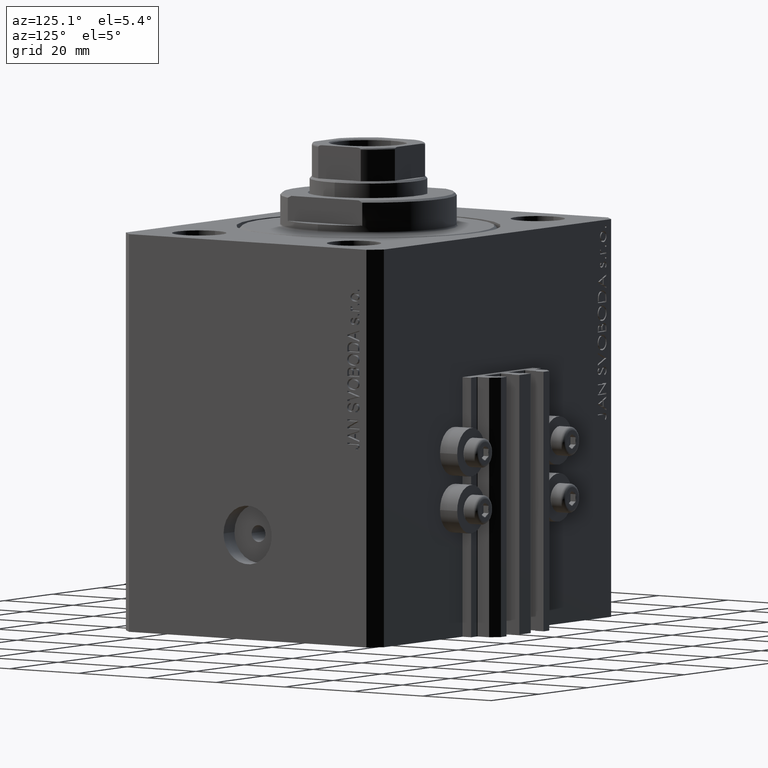
[diagram: clean part render]
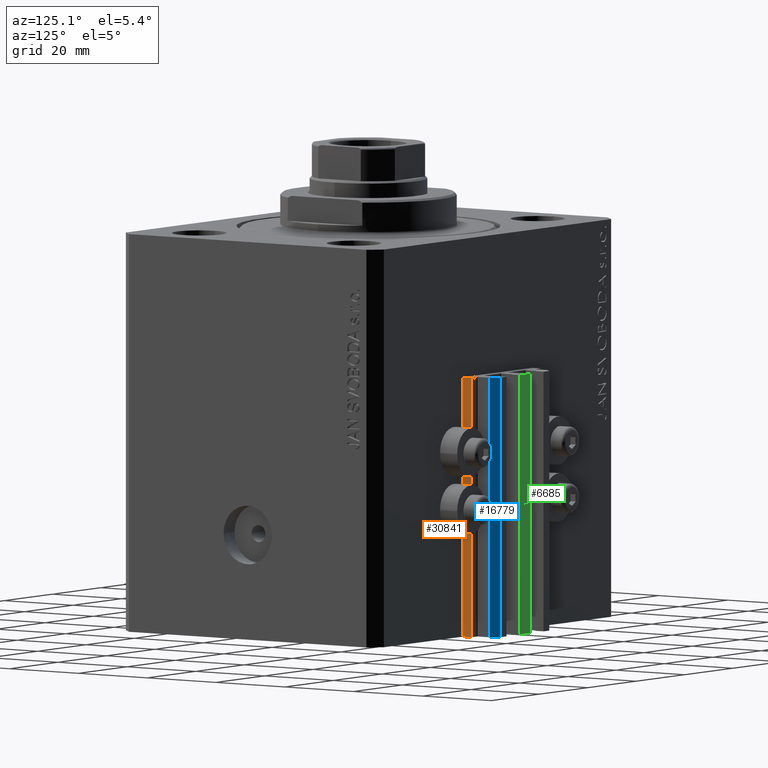
[diagram: same view with three faces highlighted in distinct colors, each labeled with its STEP entity id]
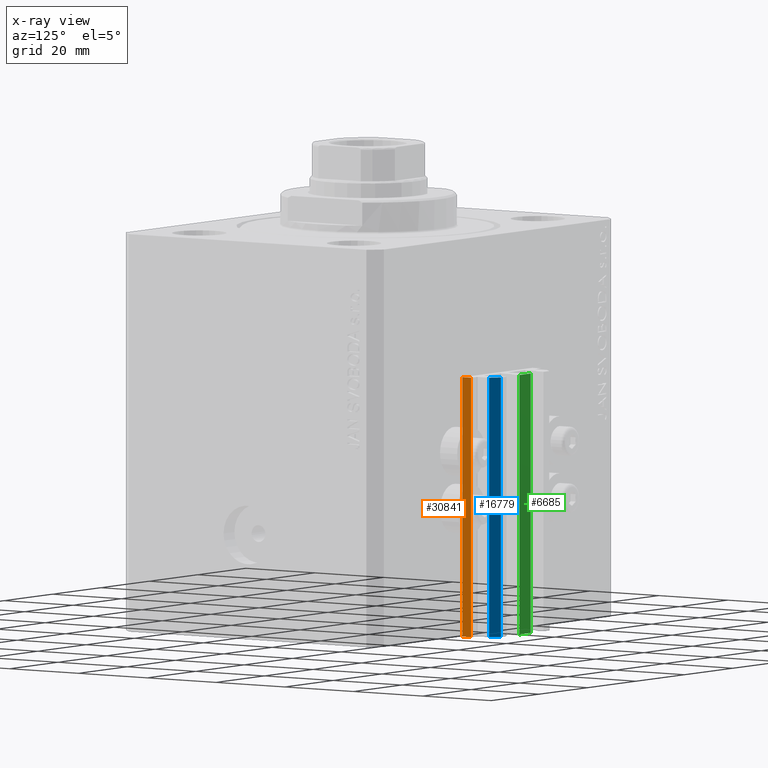
[diagram: x-ray of the same camera — body ghosted, the three highlighted faces saturated]
A machine part, auxiliary view with three faces highlighted in distinct colors.
The next image is the same camera in x-ray (body ghosted, the three faces saturated) — at least one of them is partly hidden behind the body in this view.
Their STEP definitions:

[orange] entity #30841 — the highlighted planar face has unit normal (1, 0, 0).
#393 = VERTEX_POINT ( 'NONE', #10995 ) ;
#1667 = PLANE ( 'NONE',  #35271 ) ;
#2195 = VERTEX_POINT ( 'NONE', #31510 ) ;
#2630 = EDGE_CURVE ( 'NONE', #2195, #10492, #40491, .T. ) ;
#7462 = LINE ( 'NONE', #29495, #40593 ) ;
#7479 = CARTESIAN_POINT ( 'NONE',  ( 14.49999999999999645, 37.50000000000000711, -33.00000000000000000 ) ) ;
#7879 = EDGE_CURVE ( 'NONE', #2195, #393, #7462, .T. ) ;
#8847 = VECTOR ( 'NONE', #46118, 1000.000000000000000 ) ;
#10492 = VERTEX_POINT ( 'NONE', #7479 ) ;
#10995 = CARTESIAN_POINT ( 'NONE',  ( 14.49999999999999645, 40.00000000000002132, -95.00000000000000000 ) ) ;
#11640 = EDGE_LOOP ( 'NONE', ( #27691, #30156, #27555, #39310 ) ) ;
#15188 = CARTESIAN_POINT ( 'NONE',  ( 14.49999999999999645, 37.50000000000000711, -95.00000000000000000 ) ) ;
#16294 = DIRECTION ( 'NONE',  ( 1.000000000000000000, 0.000000000000000000, 0.000000000000000000 ) ) ;
#24583 = CARTESIAN_POINT ( 'NONE',  ( 14.49999999999999645, 40.00000000000002132, -33.00000000000000000 ) ) ;
#25302 = VERTEX_POINT ( 'NONE', #24583 ) ;
#25439 = DIRECTION ( 'NONE',  ( 0.000000000000000000, 1.000000000000000000, 0.000000000000000000 ) ) ;
#26032 = VECTOR ( 'NONE', #43587, 1000.000000000000000 ) ;
#27555 = ORIENTED_EDGE ( 'NONE', *, *, #7879, .T. ) ;
#27691 = ORIENTED_EDGE ( 'NONE', *, *, #45902, .F. ) ;
#29206 = EDGE_CURVE ( 'NONE', #393, #25302, #30127, .T. ) ;
#29495 = CARTESIAN_POINT ( 'NONE',  ( 14.49999999999999645, 37.50000000000000711, -95.00000000000000000 ) ) ;
#29783 = DIRECTION ( 'NONE',  ( 0.000000000000000000, 0.000000000000000000, -1.000000000000000000 ) ) ;
#30127 = LINE ( 'NONE', #44725, #40619 ) ;
#30156 = ORIENTED_EDGE ( 'NONE', *, *, #2630, .F. ) ;
#30841 = ADVANCED_FACE ( 'NONE', ( #37202 ), #1667, .T. ) ;
#31058 = CARTESIAN_POINT ( 'NONE',  ( 14.49999999999999645, 37.50000000000000711, -33.00000000000000000 ) ) ;
#31510 = CARTESIAN_POINT ( 'NONE',  ( 14.49999999999999645, 37.50000000000000711, -95.00000000000000000 ) ) ;
#33523 = CARTESIAN_POINT ( 'NONE',  ( 14.49999999999999645, 37.50000000000000711, -95.00000000000000000 ) ) ;
#35271 = AXIS2_PLACEMENT_3D ( 'NONE', #15188, #16294, #29783 ) ;
#37202 = FACE_OUTER_BOUND ( 'NONE', #11640, .T. ) ;
#37542 = DIRECTION ( 'NONE',  ( 0.000000000000000000, 0.000000000000000000, 1.000000000000000000 ) ) ;
#39310 = ORIENTED_EDGE ( 'NONE', *, *, #29206, .T. ) ;
#40491 = LINE ( 'NONE', #33523, #26032 ) ;
#40593 = VECTOR ( 'NONE', #25439, 1000.000000000000000 ) ;
#40619 = VECTOR ( 'NONE', #37542, 1000.000000000000000 ) ;
#42298 = LINE ( 'NONE', #31058, #8847 ) ;
#43587 = DIRECTION ( 'NONE',  ( 0.000000000000000000, 0.000000000000000000, 1.000000000000000000 ) ) ;
#44725 = CARTESIAN_POINT ( 'NONE',  ( 14.49999999999999645, 40.00000000000002132, -95.00000000000000000 ) ) ;
#45902 = EDGE_CURVE ( 'NONE', #10492, #25302, #42298, .T. ) ;
#46118 = DIRECTION ( 'NONE',  ( 0.000000000000000000, 1.000000000000000000, 0.000000000000000000 ) ) ;

[blue] entity #16779 — the highlighted planar face has unit normal (0.7071, 0.7071, 0).
#2687 = VERTEX_POINT ( 'NONE', #16273 ) ;
#3585 = PLANE ( 'NONE',  #18684 ) ;
#9104 = EDGE_LOOP ( 'NONE', ( #40064, #46188, #37468, #19495 ) ) ;
#10907 = LINE ( 'NONE', #25056, #26911 ) ;
#11188 = EDGE_CURVE ( 'NONE', #20168, #2687, #10907, .T. ) ;
#11199 = DIRECTION ( 'NONE',  ( -0.7071067811865474617, 0.7071067811865474617, 0.000000000000000000 ) ) ;
#11298 = CARTESIAN_POINT ( 'NONE',  ( 12.00000000000000000, 43.50000000000002132, -33.00000000000000000 ) ) ;
#11700 = CARTESIAN_POINT ( 'NONE',  ( 9.999999999999998224, 45.50000000000002842, -33.00000000000000000 ) ) ;
#13187 = LINE ( 'NONE', #27804, #17172 ) ;
#16273 = CARTESIAN_POINT ( 'NONE',  ( 12.00000000000000000, 43.50000000000002132, -33.00000000000000000 ) ) ;
#16779 = ADVANCED_FACE ( 'NONE', ( #23320 ), #3585, .T. ) ;
#17010 = VERTEX_POINT ( 'NONE', #20318 ) ;
#17172 = VECTOR ( 'NONE', #11199, 1000.000000000000114 ) ;
#18684 = AXIS2_PLACEMENT_3D ( 'NONE', #21568, #36391, #24917 ) ;
#19495 = ORIENTED_EDGE ( 'NONE', *, *, #25212, .T. ) ;
#19935 = VECTOR ( 'NONE', #38004, 1000.000000000000000 ) ;
#20168 = VERTEX_POINT ( 'NONE', #38480 ) ;
#20318 = CARTESIAN_POINT ( 'NONE',  ( 9.999999999999998224, 45.50000000000002842, -95.00000000000000000 ) ) ;
#21568 = CARTESIAN_POINT ( 'NONE',  ( 12.00000000000000000, 43.50000000000002132, -95.00000000000000000 ) ) ;
#21625 = EDGE_CURVE ( 'NONE', #2687, #34714, #45027, .T. ) ;
#22944 = CARTESIAN_POINT ( 'NONE',  ( 9.999999999999998224, 45.50000000000002842, -95.00000000000000000 ) ) ;
#23320 = FACE_OUTER_BOUND ( 'NONE', #9104, .T. ) ;
#24917 = DIRECTION ( 'NONE',  ( -0.7071067811865474617, 0.7071067811865474617, 0.000000000000000000 ) ) ;
#25056 = CARTESIAN_POINT ( 'NONE',  ( 12.00000000000000000, 43.50000000000002132, -95.00000000000000000 ) ) ;
#25212 = EDGE_CURVE ( 'NONE', #17010, #34714, #26998, .T. ) ;
#25917 = DIRECTION ( 'NONE',  ( -0.7071067811865474617, 0.7071067811865474617, 0.000000000000000000 ) ) ;
#26911 = VECTOR ( 'NONE', #39654, 1000.000000000000000 ) ;
#26998 = LINE ( 'NONE', #22944, #19935 ) ;
#27804 = CARTESIAN_POINT ( 'NONE',  ( 12.00000000000000000, 43.50000000000002132, -95.00000000000000000 ) ) ;
#32665 = VECTOR ( 'NONE', #25917, 1000.000000000000114 ) ;
#34714 = VERTEX_POINT ( 'NONE', #11700 ) ;
#36391 = DIRECTION ( 'NONE',  ( 0.7071067811865475727, 0.7071067811865475727, -0.000000000000000000 ) ) ;
#37468 = ORIENTED_EDGE ( 'NONE', *, *, #38910, .T. ) ;
#38004 = DIRECTION ( 'NONE',  ( 0.000000000000000000, 0.000000000000000000, 1.000000000000000000 ) ) ;
#38480 = CARTESIAN_POINT ( 'NONE',  ( 12.00000000000000000, 43.50000000000002132, -95.00000000000000000 ) ) ;
#38910 = EDGE_CURVE ( 'NONE', #20168, #17010, #13187, .T. ) ;
#39654 = DIRECTION ( 'NONE',  ( 0.000000000000000000, 0.000000000000000000, 1.000000000000000000 ) ) ;
#40064 = ORIENTED_EDGE ( 'NONE', *, *, #21625, .F. ) ;
#45027 = LINE ( 'NONE', #11298, #32665 ) ;
#46188 = ORIENTED_EDGE ( 'NONE', *, *, #11188, .F. ) ;

[green] entity #6685 — the highlighted planar face has unit normal (0, -1, 0).
#4723 = DIRECTION ( 'NONE',  ( 0.000000000000000000, 0.000000000000000000, 1.000000000000000000 ) ) ;
#5003 = VECTOR ( 'NONE', #4723, 1000.000000000000000 ) ;
#5178 = DIRECTION ( 'NONE',  ( 0.000000000000000000, -1.000000000000000000, 0.000000000000000000 ) ) ;
#6685 = ADVANCED_FACE ( 'NONE', ( #34866 ), #34393, .F. ) ;
#8187 = VERTEX_POINT ( 'NONE', #11459 ) ;
#8879 = DIRECTION ( 'NONE',  ( 0.000000000000000000, 0.000000000000000000, 1.000000000000000000 ) ) ;
#11459 = CARTESIAN_POINT ( 'NONE',  ( -2.350000000000003642, 45.50000000000000711, -95.00000000000000000 ) ) ;
#11476 = CARTESIAN_POINT ( 'NONE',  ( -2.350000000000003642, 45.50000000000000711, -95.00000000000000000 ) ) ;
#11684 = CARTESIAN_POINT ( 'NONE',  ( -2.350000000000003642, 45.50000000000000711, -95.00000000000000000 ) ) ;
#12625 = ORIENTED_EDGE ( 'NONE', *, *, #45738, .T. ) ;
#14284 = EDGE_CURVE ( 'NONE', #8187, #23640, #39999, .T. ) ;
#15865 = CARTESIAN_POINT ( 'NONE',  ( 2.349999999999999645, 45.50000000000000711, -33.00000000000000000 ) ) ;
#18034 = ORIENTED_EDGE ( 'NONE', *, *, #45060, .T. ) ;
#20023 = ORIENTED_EDGE ( 'NONE', *, *, #35441, .F. ) ;
#20766 = AXIS2_PLACEMENT_3D ( 'NONE', #41831, #5178, #34170 ) ;
#22476 = CARTESIAN_POINT ( 'NONE',  ( -2.350000000000003642, 45.50000000000000711, -33.00000000000000000 ) ) ;
#22614 = VECTOR ( 'NONE', #37061, 1000.000000000000000 ) ;
#23640 = VERTEX_POINT ( 'NONE', #37504 ) ;
#26526 = LINE ( 'NONE', #22476, #22614 ) ;
#27546 = CARTESIAN_POINT ( 'NONE',  ( 2.349999999999999645, 45.50000000000000711, -95.00000000000000000 ) ) ;
#28038 = EDGE_LOOP ( 'NONE', ( #18034, #20023, #34476, #12625 ) ) ;
#31137 = LINE ( 'NONE', #27546, #32366 ) ;
#32366 = VECTOR ( 'NONE', #8879, 1000.000000000000000 ) ;
#33502 = DIRECTION ( 'NONE',  ( 1.000000000000000000, 0.000000000000000000, 0.000000000000000000 ) ) ;
#33938 = LINE ( 'NONE', #11684, #5003 ) ;
#34170 = DIRECTION ( 'NONE',  ( 0.000000000000000000, -0.000000000000000000, -1.000000000000000000 ) ) ;
#34393 = PLANE ( 'NONE',  #20766 ) ;
#34476 = ORIENTED_EDGE ( 'NONE', *, *, #14284, .F. ) ;
#34866 = FACE_OUTER_BOUND ( 'NONE', #28038, .T. ) ;
#35441 = EDGE_CURVE ( 'NONE', #23640, #43390, #31137, .T. ) ;
#35807 = VERTEX_POINT ( 'NONE', #39942 ) ;
#37061 = DIRECTION ( 'NONE',  ( 1.000000000000000000, 0.000000000000000000, 0.000000000000000000 ) ) ;
#37504 = CARTESIAN_POINT ( 'NONE',  ( 2.349999999999999645, 45.50000000000000711, -95.00000000000000000 ) ) ;
#37709 = VECTOR ( 'NONE', #33502, 1000.000000000000000 ) ;
#39942 = CARTESIAN_POINT ( 'NONE',  ( -2.350000000000003642, 45.50000000000000711, -33.00000000000000000 ) ) ;
#39999 = LINE ( 'NONE', #11476, #37709 ) ;
#41831 = CARTESIAN_POINT ( 'NONE',  ( -2.350000000000003642, 45.50000000000000711, -95.00000000000000000 ) ) ;
#43390 = VERTEX_POINT ( 'NONE', #15865 ) ;
#45060 = EDGE_CURVE ( 'NONE', #35807, #43390, #26526, .T. ) ;
#45738 = EDGE_CURVE ( 'NONE', #8187, #35807, #33938, .T. ) ;